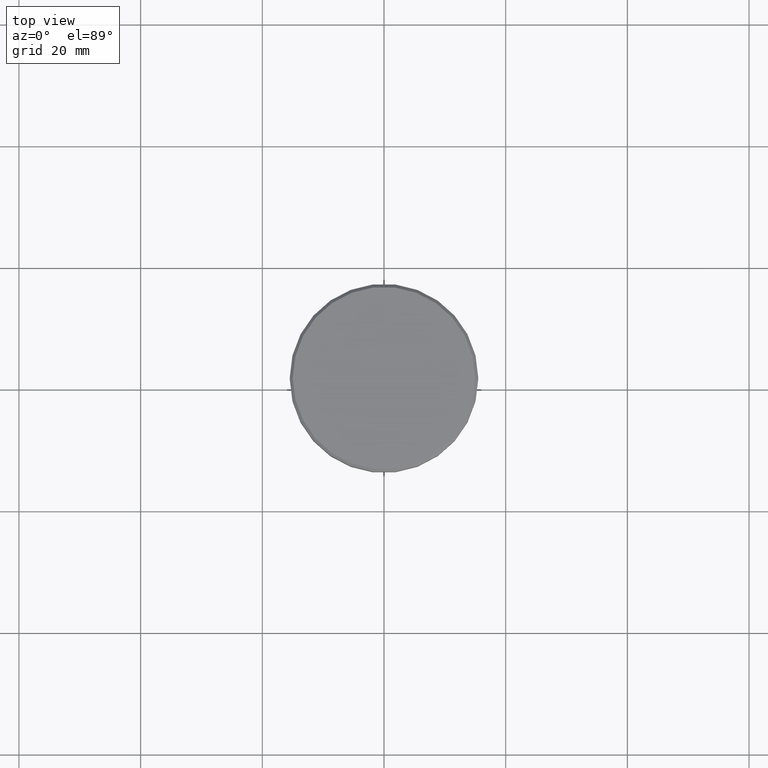
[diagram: clean part render]
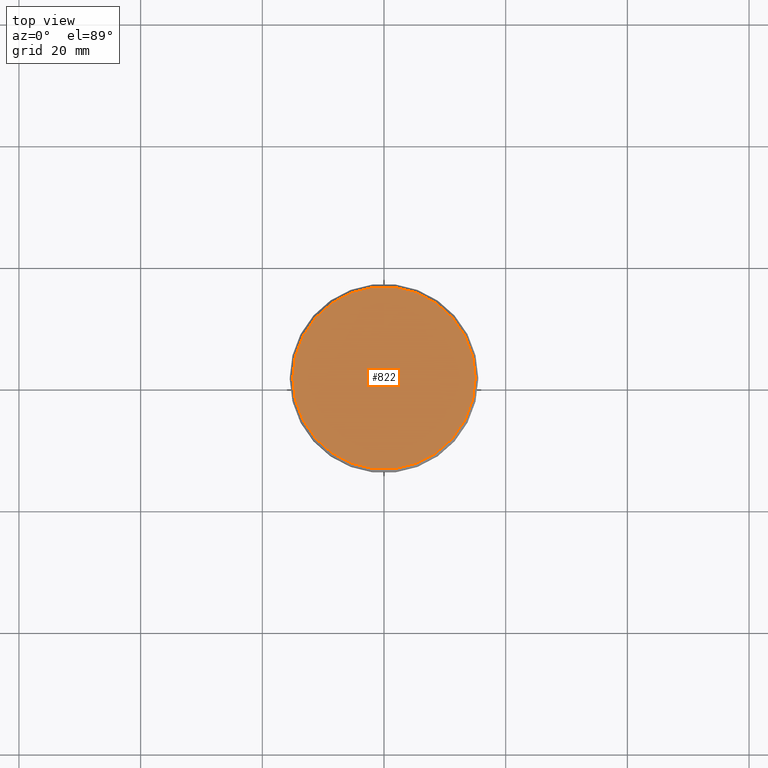
[diagram: same view with one face highlighted and labeled with its STEP entity id]
A machine part, top view. The second image highlights one B-rep face of the part: STEP entity #822.
In plain terms, the highlighted planar face has unit normal (0, -0, 1).
Its self-contained STEP definition (entity closure, byte-faithful):
#142 = AXIS2_PLACEMENT_3D ( 'NONE', #272, #639, #179 ) ;
#179 = DIRECTION ( 'NONE',  ( 1.000000000000000000, 0.000000000000000000, 0.000000000000000000 ) ) ;
#244 = EDGE_LOOP ( 'NONE', ( #262, #1162 ) ) ;
#262 = ORIENTED_EDGE ( 'NONE', *, *, #949, .T. ) ;
#270 = VERTEX_POINT ( 'NONE', #1059 ) ;
#272 = CARTESIAN_POINT ( 'NONE',  ( 0.000000000000000000, 0.000000000000000000, 0.000000000000000000 ) ) ;
#354 = DIRECTION ( 'NONE',  ( 0.000000000000000000, -0.000000000000000000, 1.000000000000000000 ) ) ;
#375 = AXIS2_PLACEMENT_3D ( 'NONE', #593, #966, #502 ) ;
#502 = DIRECTION ( 'NONE',  ( 1.000000000000000000, 0.000000000000000000, 0.000000000000000000 ) ) ;
#593 = CARTESIAN_POINT ( 'NONE',  ( 0.000000000000000000, 0.000000000000000000, 0.000000000000000000 ) ) ;
#595 = VERTEX_POINT ( 'NONE', #1129 ) ;
#636 = FACE_OUTER_BOUND ( 'NONE', #244, .T. ) ;
#639 = DIRECTION ( 'NONE',  ( -0.000000000000000000, -0.000000000000000000, 1.000000000000000000 ) ) ;
#817 = PLANE ( 'NONE',  #941 ) ;
#822 = ADVANCED_FACE ( 'NONE', ( #636 ), #817, .T. ) ;
#892 = CIRCLE ( 'NONE', #375, 15.00000000000001421 ) ;
#899 = EDGE_CURVE ( 'NONE', #270, #595, #1084, .T. ) ;
#916 = DIRECTION ( 'NONE',  ( 1.000000000000000000, 0.000000000000000000, 0.000000000000000000 ) ) ;
#941 = AXIS2_PLACEMENT_3D ( 'NONE', #1180, #354, #916 ) ;
#949 = EDGE_CURVE ( 'NONE', #595, #270, #892, .T. ) ;
#966 = DIRECTION ( 'NONE',  ( -0.000000000000000000, -0.000000000000000000, 1.000000000000000000 ) ) ;
#1059 = CARTESIAN_POINT ( 'NONE',  ( 15.00000000000001421, 1.867586368699714559E-15, 0.000000000000000000 ) ) ;
#1084 = CIRCLE ( 'NONE', #142, 15.00000000000001421 ) ;
#1129 = CARTESIAN_POINT ( 'NONE',  ( -15.00000000000001421, 0.000000000000000000, 0.000000000000000000 ) ) ;
#1162 = ORIENTED_EDGE ( 'NONE', *, *, #899, .T. ) ;
#1180 = CARTESIAN_POINT ( 'NONE',  ( 0.000000000000000000, 0.000000000000000000, 0.000000000000000000 ) ) ;